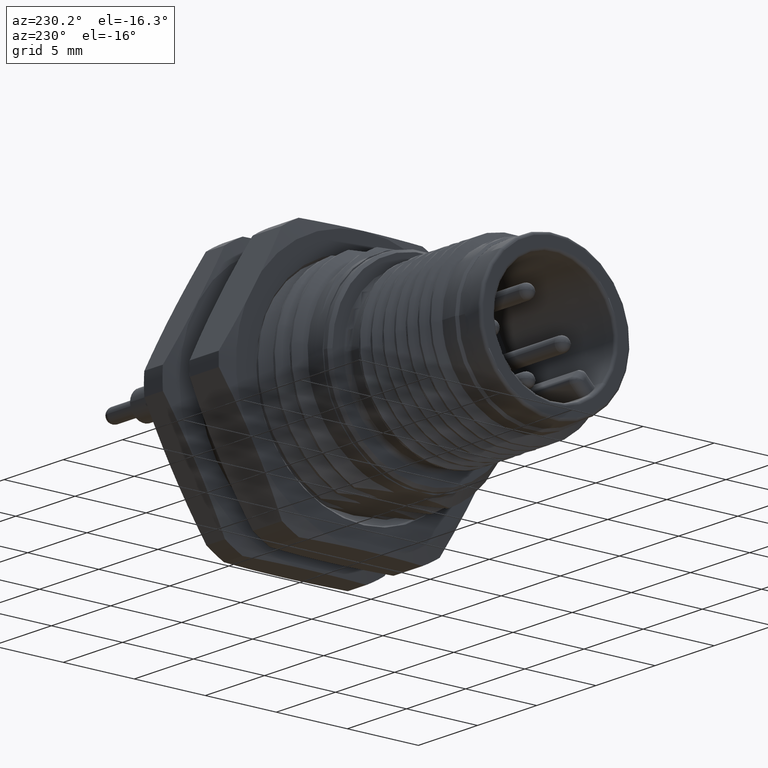
[diagram: clean part render]
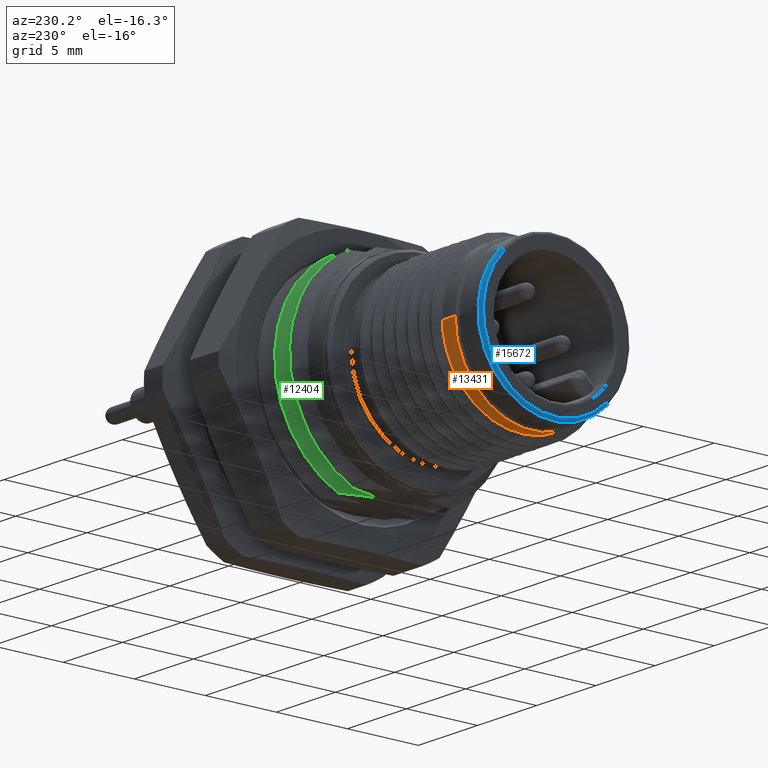
[diagram: same view with three faces highlighted in distinct colors, each labeled with its STEP entity id]
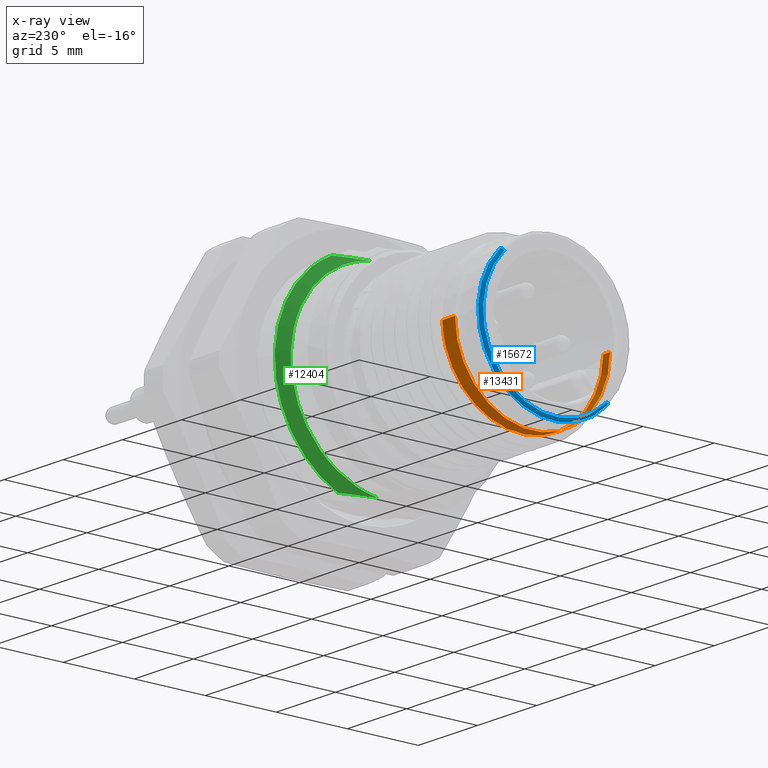
[diagram: x-ray of the same camera — body ghosted, the three highlighted faces saturated]
A machine part, auxiliary view with three faces highlighted in distinct colors.
The next image is the same camera in x-ray (body ghosted, the three faces saturated) — at least one of them is partly hidden behind the body in this view.
Their STEP definitions:

[orange] entity #13431 — the highlighted cylindrical surface (partial cylindrical patch) has radius 5.4585 mm, axis along (1, 0, 0).
#3363=CARTESIAN_POINT('',(3.499999999998E-1,0.E0,0.E0));
#3364=DIRECTION('',(-1.E0,0.E0,0.E0));
#3365=DIRECTION('',(0.E0,1.E0,0.E0));
#3366=AXIS2_PLACEMENT_3D('',#3363,#3364,#3365);
#3368=CARTESIAN_POINT('',(9.248765635977E-1,-5.458520857983E0,
5.076850614078E-8));
#3369=CARTESIAN_POINT('',(9.340846659478E-1,-5.458520857983E0,
-3.169569178566E-1));
#3370=CARTESIAN_POINT('',(9.526151405564E-1,-5.403510371E0,-9.514912675740E-1));
#3371=CARTESIAN_POINT('',(9.806438648012E-1,-5.152963968347E0,
-1.883805318228E0));
#3372=CARTESIAN_POINT('',(1.008243862022E0,-4.749815974066E0,
-2.744118420099E0));
#3373=CARTESIAN_POINT('',(1.035653454384E0,-4.209535097711E0,
-3.517706306935E0));
#3374=CARTESIAN_POINT('',(1.063474872286E0,-3.534263538992E0,
-4.197006954141E0));
#3375=CARTESIAN_POINT('',(1.091588359439E0,-2.741594492282E0,
-4.752528132624E0));
#3376=CARTESIAN_POINT('',(1.119235084467E0,-1.878612124942E0,
-5.153911022449E0));
#3377=CARTESIAN_POINT('',(1.146772205175E0,-9.633989178743E-1,
-5.401165180746E0));
#3378=CARTESIAN_POINT('',(1.174942261750E0,2.661694315453E-3,
-5.487362920251E0));
#3379=CARTESIAN_POINT('',(1.203102937953E0,9.683646549798E-1,
-5.400379416980E0));
#3380=CARTESIAN_POINT('',(1.230722287038E0,1.885980052780E0,-5.151252791833E0));
#3381=CARTESIAN_POINT('',(1.258276057838E0,2.745483720988E0,-4.749944683564E0));
#3382=CARTESIAN_POINT('',(1.286311286996E0,3.535807172915E0,-4.195853698735E0));
#3383=CARTESIAN_POINT('',(1.314268300065E0,4.213941912702E0,-3.512717687885E0));
#3384=CARTESIAN_POINT('',(1.341668925441E0,4.752845956499E0,-2.738653902931E0));
#3385=CARTESIAN_POINT('',(1.369187843038E0,5.154012999722E0,-1.880178247110E0));
#3386=CARTESIAN_POINT('',(1.397107418779E0,5.403131699077E0,
-9.526887606883E-1));
#3387=CARTESIAN_POINT('',(1.415560325993E0,5.458507799918E0,
-3.176989596714E-1));
#3388=CARTESIAN_POINT('',(1.424879476798E0,5.458507799918E0,
-2.226288135594E-7));
#3969=DIRECTION('',(9.999999999736E-1,7.256551296151E-6,-2.071197911241E-7));
#3970=VECTOR('',#3969,1.074879476826E0);
#3971=CARTESIAN_POINT('',(3.5E-1,5.4585E0,0.E0));
#3972=LINE('',#3971,#3970);
#4033=DIRECTION('',(-9.999999993418E-1,3.628254247179E-5,-8.831201076289E-8));
#4034=VECTOR('',#4033,5.748765639761E-1);
#4035=CARTESIAN_POINT('',(9.248765635977E-1,-5.458520857983E0,
5.076850614078E-8));
#4036=LINE('',#4035,#4034);
#8963=CARTESIAN_POINT('',(9.248765635977E-1,-5.458520857983E0,
5.076850614078E-8));
#8964=CARTESIAN_POINT('',(3.5E-1,-5.4585E0,0.E0));
#8965=VERTEX_POINT('',#8963);
#8966=VERTEX_POINT('',#8964);
#8967=VERTEX_POINT('',#3388);
#8968=CARTESIAN_POINT('',(3.5E-1,5.4585E0,0.E0));
#8969=VERTEX_POINT('',#8968);
#13416=CARTESIAN_POINT('',(1.75E-1,0.E0,0.E0));
#13417=DIRECTION('',(1.E0,0.E0,0.E0));
#13418=DIRECTION('',(0.E0,-1.E0,0.E0));
#13419=AXIS2_PLACEMENT_3D('',#13416,#13417,#13418);
#13420=CYLINDRICAL_SURFACE('',#13419,5.4585E0);
#13422=ORIENTED_EDGE('',*,*,#13421,.T.);
#13424=ORIENTED_EDGE('',*,*,#13423,.F.);
#13426=ORIENTED_EDGE('',*,*,#13425,.T.);
#13428=ORIENTED_EDGE('',*,*,#13427,.F.);
#13429=EDGE_LOOP('',(#13422,#13424,#13426,#13428));
#13430=FACE_OUTER_BOUND('',#13429,.F.);
#13431=ADVANCED_FACE('',(#13430),#13420,.T.);
#3367=CIRCLE('',#3366,5.4585E0);
#3389=B_SPLINE_CURVE_WITH_KNOTS('',3,(#3368,#3369,#3370,#3371,#3372,#3373,#3374,
#3375,#3376,#3377,#3378,#3379,#3380,#3381,#3382,#3383,#3384,#3385,#3386,#3387,
#3388),.UNSPECIFIED.,.F.,.F.,(4,1,1,1,1,1,1,1,1,1,1,1,1,1,1,1,1,1,4),(0.E0,
5.555555555556E-2,1.111111111111E-1,1.666666666667E-1,2.222222222222E-1,
2.777777777778E-1,3.333333333333E-1,3.888888888889E-1,4.444444444444E-1,5.E-1,
5.555555555556E-1,6.111111111111E-1,6.666666666667E-1,7.222222222222E-1,
7.777777777778E-1,8.333333333333E-1,8.888888888889E-1,9.444444444444E-1,1.E0),
.UNSPECIFIED.);
#13421=EDGE_CURVE('',#8969,#8966,#3367,.T.);
#13423=EDGE_CURVE('',#8965,#8966,#4036,.T.);
#13425=EDGE_CURVE('',#8965,#8967,#3389,.T.);
#13427=EDGE_CURVE('',#8969,#8967,#3972,.T.);

[blue] entity #15672 — the highlighted toroidal blend (fillet) surface has major radius 5.1 mm and minor (blend) radius 0.2 mm.
#4762=CARTESIAN_POINT('',(-1.4E0,0.E0,0.E0));
#4763=DIRECTION('',(-1.E0,0.E0,0.E0));
#4764=DIRECTION('',(0.E0,7.071067811865E-1,7.071067811865E-1));
#4765=AXIS2_PLACEMENT_3D('',#4762,#4763,#4764);
#4819=CARTESIAN_POINT('',(-1.6E0,0.E0,0.E0));
#4820=DIRECTION('',(1.E0,0.E0,0.E0));
#4821=DIRECTION('',(0.E0,-7.059014297853E-1,-7.083100814100E-1));
#4822=AXIS2_PLACEMENT_3D('',#4819,#4820,#4821);
#4839=CARTESIAN_POINT('',(-1.6E0,0.E0,0.E0));
#4840=DIRECTION('',(-1.E0,0.E0,0.E0));
#4841=DIRECTION('',(0.E0,-7.059014297853E-1,-7.083100814100E-1));
#4842=AXIS2_PLACEMENT_3D('',#4839,#4840,#4841);
#4844=CARTESIAN_POINT('',(-1.4E0,-3.606264246742E0,-3.606224921257E0));
#4845=DIRECTION('',(0.E0,-7.071029257363E-1,7.071106366158E-1));
#4846=DIRECTION('',(-1.E0,9.385825450180E-12,9.383605004131E-12));
#4847=AXIS2_PLACEMENT_3D('',#4844,#4845,#4846);
#4849=CARTESIAN_POINT('',(-1.4E0,3.606244584053E0,3.606244584053E0));
#4850=DIRECTION('',(0.E0,-7.071067811866E-1,7.071067811865E-1));
#4851=DIRECTION('',(0.E0,7.071067811865E-1,7.071067811866E-1));
#4852=AXIS2_PLACEMENT_3D('',#4849,#4850,#4851);
#8232=CARTESIAN_POINT('',(-1.6E0,-3.606264246741E0,-3.606224921255E0));
#8234=VERTEX_POINT('',#8232);
#8235=CARTESIAN_POINT('',(-1.6E0,-3.600097291905E0,-3.612381415191E0));
#8236=CARTESIAN_POINT('',(-1.6E0,3.606266493909E0,3.606222674061E0));
#8237=VERTEX_POINT('',#8235);
#8238=VERTEX_POINT('',#8236);
#8245=CARTESIAN_POINT('',(-1.4E0,3.747665940291E0,3.747665940291E0));
#8246=VERTEX_POINT('',#8245);
#8247=CARTESIAN_POINT('',(-1.4E0,-3.747686374066E0,-3.747645506404E0));
#8248=VERTEX_POINT('',#8247);
#15660=CARTESIAN_POINT('',(-1.4E0,0.E0,0.E0));
#15661=DIRECTION('',(1.E0,0.E0,0.E0));
#15662=DIRECTION('',(0.E0,7.058915909711E-1,7.083198866305E-1));
#15663=AXIS2_PLACEMENT_3D('',#15660,#15661,#15662);
#15664=TOROIDAL_SURFACE('',#15663,5.100000000003E0,2.E-1);
#15665=ORIENTED_EDGE('',*,*,#15647,.F.);
#15666=ORIENTED_EDGE('',*,*,#15645,.T.);
#15667=ORIENTED_EDGE('',*,*,#15633,.T.);
#15668=ORIENTED_EDGE('',*,*,#15594,.F.);
#15669=ORIENTED_EDGE('',*,*,#15630,.T.);
#15670=EDGE_LOOP('',(#15665,#15666,#15667,#15668,#15669));
#15671=FACE_OUTER_BOUND('',#15670,.F.);
#15672=ADVANCED_FACE('',(#15671),#15664,.T.);
#4766=CIRCLE('',#4765,5.3E0);
#4823=CIRCLE('',#4822,5.1E0);
#4843=CIRCLE('',#4842,5.1E0);
#4848=CIRCLE('',#4847,2.E-1);
#4853=CIRCLE('',#4852,2.E-1);
#15594=EDGE_CURVE('',#8246,#8248,#4766,.T.);
#15630=EDGE_CURVE('',#8246,#8238,#4853,.T.);
#15633=EDGE_CURVE('',#8234,#8248,#4848,.T.);
#15645=EDGE_CURVE('',#8237,#8234,#4843,.T.);
#15647=EDGE_CURVE('',#8237,#8238,#4823,.T.);

[green] entity #12404 — the highlighted face is a freeform B-spline surface patch.
#2646=CARTESIAN_POINT('',(1.226537249921E1,9.746202226944E-1,
-6.749957030987E0));
#2647=CARTESIAN_POINT('',(1.230170105199E1,1.213524598993E0,-6.749957030987E0));
#2648=CARTESIAN_POINT('',(1.239552703936E1,1.701477460564E0,-6.750008705706E0));
#2649=CARTESIAN_POINT('',(1.262381443884E1,2.512182157511E0,-6.750033983548E0));
#2650=CARTESIAN_POINT('',(1.280213175824E1,3.006094158159E0,-6.749914901250E0));
#2651=CARTESIAN_POINT('',(1.289782222037E1,3.250735051937E0,-6.749914901250E0));
#2653=CARTESIAN_POINT('',(1.289782222037E1,3.250735051937E0,-6.749914901250E0));
#2654=CARTESIAN_POINT('',(1.290976986363E1,3.613277536617E0,-6.575144600618E0));
#2655=CARTESIAN_POINT('',(1.293410603695E1,4.310472726295E0,-6.167802644654E0));
#2656=CARTESIAN_POINT('',(1.297017066261E1,5.243615644213E0,-5.396197940366E0));
#2657=CARTESIAN_POINT('',(1.300634117621E1,6.041094487943E0,-4.485078258346E0));
#2658=CARTESIAN_POINT('',(1.304246275978E1,6.682637953768E0,-3.459244616387E0));
#2659=CARTESIAN_POINT('',(1.307856880735E1,7.149285131072E0,-2.343627320681E0));
#2660=CARTESIAN_POINT('',(1.311464204985E1,7.433229301369E0,-1.169152663105E0));
#2661=CARTESIAN_POINT('',(1.315067721246E1,7.523944613989E0,3.417157545707E-2));
#2662=CARTESIAN_POINT('',(1.318666389064E1,7.421559901505E0,1.235281242936E0));
#2663=CARTESIAN_POINT('',(1.322259172771E1,7.130588429779E0,2.402718464410E0));
#2664=CARTESIAN_POINT('',(1.325845508999E1,6.656132047002E0,3.506314257884E0));
#2665=CARTESIAN_POINT('',(1.329428218520E1,6.014979726411E0,4.520161510799E0));
#2666=CARTESIAN_POINT('',(1.332999732709E1,5.221208125925E0,5.416931634925E0));
#2667=CARTESIAN_POINT('',(1.336590495387E1,4.296221753536E0,6.175981106587E0));
#2668=CARTESIAN_POINT('',(1.338923180628E1,3.608234869174E0,6.577619325861E0));
#2669=CARTESIAN_POINT('',(1.340134377264E1,3.250775130260E0,6.749991963377E0));
#2671=CARTESIAN_POINT('',(1.340134377264E1,3.250775130260E0,6.749991963377E0));
#2672=CARTESIAN_POINT('',(1.331351836928E1,2.990140679102E0,6.749991963377E0));
#2673=CARTESIAN_POINT('',(1.315885511810E1,2.474276016576E0,6.749999844435E0));
#2674=CARTESIAN_POINT('',(1.299270132090E1,1.713596593912E0,6.750012599413E0));
#2675=CARTESIAN_POINT('',(1.292745887473E1,1.219059857664E0,6.749970705079E0));
#2676=CARTESIAN_POINT('',(1.290599596374E1,9.746250541940E-1,6.749970705079E0));
#2704=CARTESIAN_POINT('',(1.226537249921E1,9.746202226944E-1,
-6.749957030987E0));
#2705=CARTESIAN_POINT('',(1.227708591829E1,1.331582400213E0,-6.698415493053E0));
#2706=CARTESIAN_POINT('',(1.230096802977E1,2.037256475181E0,-6.538660230188E0));
#2707=CARTESIAN_POINT('',(1.233650582360E1,3.044544928063E0,-6.134713932773E0));
#2708=CARTESIAN_POINT('',(1.237210901166E1,3.975123852160E0,-5.576950689402E0));
#2709=CARTESIAN_POINT('',(1.240769689780E1,4.806059298459E0,-4.879122916945E0));
#2710=CARTESIAN_POINT('',(1.244328829334E1,5.516309695434E0,-4.058858647536E0));
#2711=CARTESIAN_POINT('',(1.247887890425E1,6.088113502112E0,-3.136702009646E0));
#2712=CARTESIAN_POINT('',(1.251446968157E1,6.507096577691E0,-2.135816413554E0));
#2713=CARTESIAN_POINT('',(1.255006042086E1,6.762748693883E0,-1.081318930741E0));
#2714=CARTESIAN_POINT('',(1.258565115760E1,6.848650923633E0,3.198474121658E-4));
#2715=CARTESIAN_POINT('',(1.262124190987E1,6.762647566951E0,1.081950775965E0));
#2716=CARTESIAN_POINT('',(1.265683260297E1,6.506897386315E0,2.136423841477E0));
#2717=CARTESIAN_POINT('',(1.269242353396E1,6.087819292846E0,3.137271804020E0));
#2718=CARTESIAN_POINT('',(1.272801362149E1,5.515934445519E0,4.059370756475E0));
#2719=CARTESIAN_POINT('',(1.276360680040E1,4.805591254385E0,4.879580328976E0));
#2720=CARTESIAN_POINT('',(1.279918866997E1,3.974637837217E0,5.577301180757E0));
#2721=CARTESIAN_POINT('',(1.283481192388E1,3.043887553868E0,6.135042214030E0));
#2722=CARTESIAN_POINT('',(1.287028373131E1,2.036770649566E0,6.538783633712E0));
#2723=CARTESIAN_POINT('',(1.289430090278E1,1.331394021407E0,6.698457064656E0));
#2724=CARTESIAN_POINT('',(1.290599596374E1,9.746250541940E-1,6.749970705079E0));
#8806=CARTESIAN_POINT('',(1.226537249921E1,9.746202226944E-1,
-6.749957030987E0));
#8807=VERTEX_POINT('',#8806);
#8808=VERTEX_POINT('',#2724);
#8896=CARTESIAN_POINT('',(1.289782222037E1,3.250735051937E0,-6.749914901250E0));
#8897=VERTEX_POINT('',#8896);
#8898=CARTESIAN_POINT('',(1.340134377264E1,3.250775130260E0,6.749991963377E0));
#8899=VERTEX_POINT('',#8898);
#12344=CARTESIAN_POINT('',(1.285429937283E1,8.628118404491E-1,
-7.479503288930E0));
#12345=CARTESIAN_POINT('',(1.264545694360E1,8.342916771956E-1,
-7.232269019687E0));
#12346=CARTESIAN_POINT('',(1.243661451438E1,8.057715139420E-1,
-6.985034750444E0));
#12347=CARTESIAN_POINT('',(1.222777208515E1,7.772513506885E-1,
-6.737800481201E0));
#12348=CARTESIAN_POINT('',(1.285643474333E1,9.339926207818E-1,
-7.471320187039E0));
#12349=CARTESIAN_POINT('',(1.264759231411E1,9.031195836101E-1,
-7.224356409450E0));
#12350=CARTESIAN_POINT('',(1.243874988488E1,8.722465464383E-1,
-6.977392631861E0));
#12351=CARTESIAN_POINT('',(1.222990745565E1,8.413735092665E-1,
-6.730428854272E0));
#12352=CARTESIAN_POINT('',(1.286704050527E1,1.286943920756E0,
-7.425657450403E0));
#12353=CARTESIAN_POINT('',(1.265819807604E1,1.244404111961E0,
-7.180203050227E0));
#12354=CARTESIAN_POINT('',(1.244935564681E1,1.201864303166E0,
-6.934748650050E0));
#12355=CARTESIAN_POINT('',(1.224051321758E1,1.159324494371E0,
-6.689294249874E0));
#12356=CARTESIAN_POINT('',(1.290785089820E1,2.631156191787E0,
-7.154168537620E0));
#12357=CARTESIAN_POINT('',(1.269900846897E1,2.544183574328E0,
-6.917688177612E0));
#12358=CARTESIAN_POINT('',(1.249016603974E1,2.457210956870E0,
-6.681207817605E0));
#12359=CARTESIAN_POINT('',(1.228132361052E1,2.370238339411E0,
-6.444727457597E0));
#12360=CARTESIAN_POINT('',(1.297673055163E1,4.746197955967E0,
-6.110169128027E0));
#12361=CARTESIAN_POINT('',(1.276788812240E1,4.589312834323E0,
-5.908198069125E0));
#12362=CARTESIAN_POINT('',(1.255904569317E1,4.432427712680E0,
-5.706227010223E0));
#12363=CARTESIAN_POINT('',(1.235020326395E1,4.275542591037E0,
-5.504255951321E0));
#12364=CARTESIAN_POINT('',(1.306734444463E1,6.765225785429E0,
-3.753968817462E0));
#12365=CARTESIAN_POINT('',(1.285850201540E1,6.541601891074E0,
-3.629881735539E0));
#12366=CARTESIAN_POINT('',(1.264965958617E1,6.317977996718E0,
-3.505794653616E0));
#12367=CARTESIAN_POINT('',(1.244081715695E1,6.094354102362E0,
-3.381707571693E0));
#12368=CARTESIAN_POINT('',(1.315795833763E1,7.696114298058E0,
-7.939688416676E-1));
#12369=CARTESIAN_POINT('',(1.294911590840E1,7.441719972528E0,
-7.677242771821E-1));
#12370=CARTESIAN_POINT('',(1.274027347917E1,7.187325646998E0,
-7.414797126966E-1));
#12371=CARTESIAN_POINT('',(1.253143104995E1,6.932931321468E0,
-7.152351482112E-1));
#12372=CARTESIAN_POINT('',(1.324857223063E1,7.389136578256E0,2.293735476947E0));
#12373=CARTESIAN_POINT('',(1.303972980140E1,7.144889372031E0,2.217916269098E0));
#12374=CARTESIAN_POINT('',(1.283088737217E1,6.900642165807E0,2.142097061250E0));
#12375=CARTESIAN_POINT('',(1.262204494295E1,6.656394959583E0,2.066277853402E0));
#12376=CARTESIAN_POINT('',(1.333918612363E1,5.893667848209E0,5.012508464362E0));
#12377=CARTESIAN_POINT('',(1.313034369440E1,5.698853218502E0,4.846820474214E0));
#12378=CARTESIAN_POINT('',(1.292150126517E1,5.504038588796E0,4.681132484066E0));
#12379=CARTESIAN_POINT('',(1.271265883595E1,5.309223959089E0,4.515444493918E0));
#12380=CARTESIAN_POINT('',(1.342344402281E1,3.621634613525E0,6.790901418962E0));
#12381=CARTESIAN_POINT('',(1.321460159358E1,3.501921826115E0,6.566428818984E0));
#12382=CARTESIAN_POINT('',(1.300575916436E1,3.382209038706E0,6.341956219007E0));
#12383=CARTESIAN_POINT('',(1.279691673513E1,3.262496251297E0,6.117483619029E0));
#12384=CARTESIAN_POINT('',(1.347963275187E1,1.798582133982E0,7.358837325991E0));
#12385=CARTESIAN_POINT('',(1.327079032264E1,1.739130172748E0,7.115591658667E0));
#12386=CARTESIAN_POINT('',(1.306194789341E1,1.679678211514E0,6.872345991344E0));
#12387=CARTESIAN_POINT('',(1.285310546419E1,1.620226250279E0,6.629100324020E0));
#12388=CARTESIAN_POINT('',(1.350561684993E1,9.340417420009E-1,
7.471578466211E0));
#12389=CARTESIAN_POINT('',(1.329677442070E1,9.031670811281E-1,
7.224606151229E0));
#12390=CARTESIAN_POINT('',(1.308793199147E1,8.722924202553E-1,
6.977633836247E0));
#12391=CARTESIAN_POINT('',(1.287908956224E1,8.414177593825E-1,
6.730661521265E0));
#12392=CARTESIAN_POINT('',(1.350775231081E1,8.628742071959E-1,
7.479823926948E0));
#12393=CARTESIAN_POINT('',(1.329890988157E1,8.343519824117E-1,
7.232579059046E0));
#12394=CARTESIAN_POINT('',(1.309006745234E1,8.058297576275E-1,
6.985334191145E0));
#12395=CARTESIAN_POINT('',(1.288122502311E1,7.773075328432E-1,
6.738089323243E0));
#12396=B_SPLINE_SURFACE_WITH_KNOTS('',3,3,((#12344,#12345,#12346,#12347),
(#12348,#12349,#12350,#12351),(#12352,#12353,#12354,#12355),(#12356,#12357,
#12358,#12359),(#12360,#12361,#12362,#12363),(#12364,#12365,#12366,#12367),(
#12368,#12369,#12370,#12371),(#12372,#12373,#12374,#12375),(#12376,#12377,
#12378,#12379),(#12380,#12381,#12382,#12383),(#12384,#12385,#12386,#12387),(
#12388,#12389,#12390,#12391),(#12392,#12393,#12394,#12395)),.UNSPECIFIED.,.F.,
.F.,.F.,(4,1,1,1,1,1,1,1,1,1,4),(4,4),(-9.999542745644E-3,0.E0,
3.966526705626E-2,1.811079341108E-1,3.225506011653E-1,4.639932682198E-1,
6.054359352744E-1,7.468786023289E-1,8.883212693834E-1,1.E0,1.009999965941E0),(
-5.264587889647E-3,1.004664930636E0),.UNSPECIFIED.);
#12397=ORIENTED_EDGE('',*,*,#10430,.T.);
#12398=ORIENTED_EDGE('',*,*,#12339,.T.);
#12399=ORIENTED_EDGE('',*,*,#10781,.T.);
#12401=ORIENTED_EDGE('',*,*,#12400,.F.);
#12402=EDGE_LOOP('',(#12397,#12398,#12399,#12401));
#12403=FACE_OUTER_BOUND('',#12402,.F.);
#12404=ADVANCED_FACE('',(#12403),#12396,.F.);
#2652=B_SPLINE_CURVE_WITH_KNOTS('',3,(#2646,#2647,#2648,#2649,#2650,#2651),
.UNSPECIFIED.,.F.,.F.,(4,1,1,4),(0.E0,3.333333333333E-1,6.666666666667E-1,1.E0),
.UNSPECIFIED.);
#2670=B_SPLINE_CURVE_WITH_KNOTS('',3,(#2653,#2654,#2655,#2656,#2657,#2658,#2659,
#2660,#2661,#2662,#2663,#2664,#2665,#2666,#2667,#2668,#2669),.UNSPECIFIED.,.F.,
.F.,(4,1,1,1,1,1,1,1,1,1,1,1,1,1,4),(0.E0,7.142857142857E-2,1.428571428571E-1,
2.142857142857E-1,2.857142857143E-1,3.571428571429E-1,4.285714285714E-1,5.E-1,
5.714285714286E-1,6.428571428571E-1,7.142857142857E-1,7.857142857143E-1,
8.571428571429E-1,9.285714285714E-1,1.E0),.UNSPECIFIED.);
#2677=B_SPLINE_CURVE_WITH_KNOTS('',3,(#2671,#2672,#2673,#2674,#2675,#2676),
.UNSPECIFIED.,.F.,.F.,(4,1,1,4),(0.E0,3.333333333333E-1,6.666666666667E-1,1.E0),
.UNSPECIFIED.);
#2725=B_SPLINE_CURVE_WITH_KNOTS('',3,(#2704,#2705,#2706,#2707,#2708,#2709,#2710,
#2711,#2712,#2713,#2714,#2715,#2716,#2717,#2718,#2719,#2720,#2721,#2722,#2723,
#2724),.UNSPECIFIED.,.F.,.F.,(4,1,1,1,1,1,1,1,1,1,1,1,1,1,1,1,1,1,4),(0.E0,
5.555555555556E-2,1.111111111111E-1,1.666666666667E-1,2.222222222222E-1,
2.777777777778E-1,3.333333333333E-1,3.888888888889E-1,4.444444444444E-1,5.E-1,
5.555555555556E-1,6.111111111111E-1,6.666666666667E-1,7.222222222222E-1,
7.777777777778E-1,8.333333333333E-1,8.888888888889E-1,9.444444444444E-1,1.E0),
.UNSPECIFIED.);
#10430=EDGE_CURVE('',#8807,#8897,#2652,.T.);
#10781=EDGE_CURVE('',#8899,#8808,#2677,.T.);
#12339=EDGE_CURVE('',#8897,#8899,#2670,.T.);
#12400=EDGE_CURVE('',#8807,#8808,#2725,.T.);